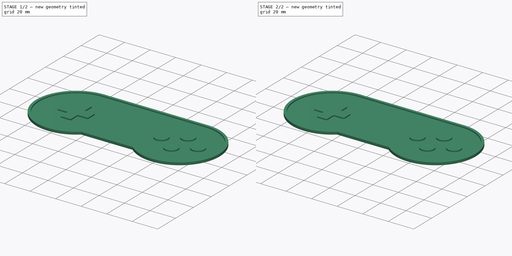
[diagram: build sequence overview — one tinted view per stage of 2, left to right]
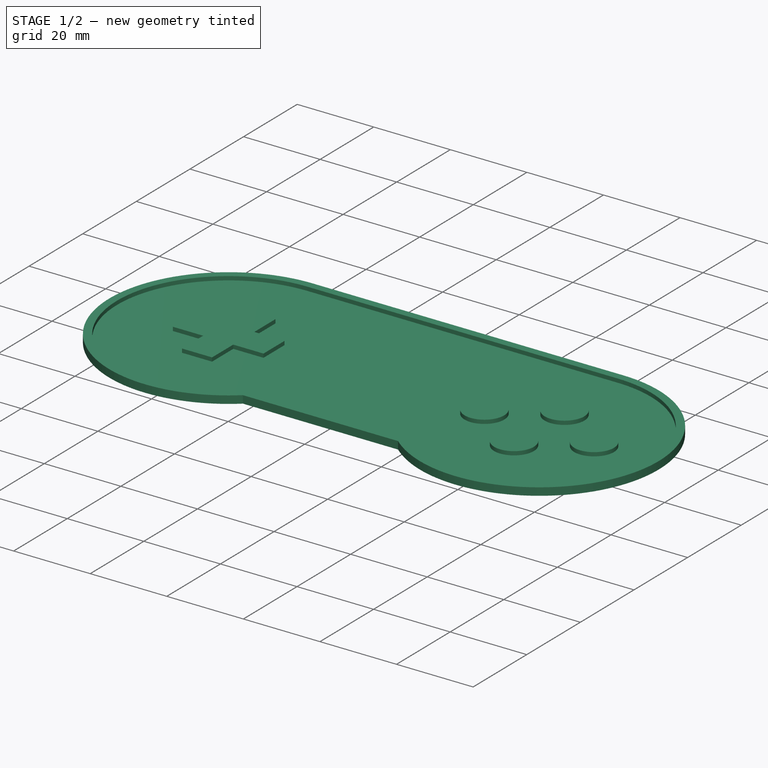
[diagram: stage 1 of 2 — iso view after this stage's code; geometry added in this stage tinted green]
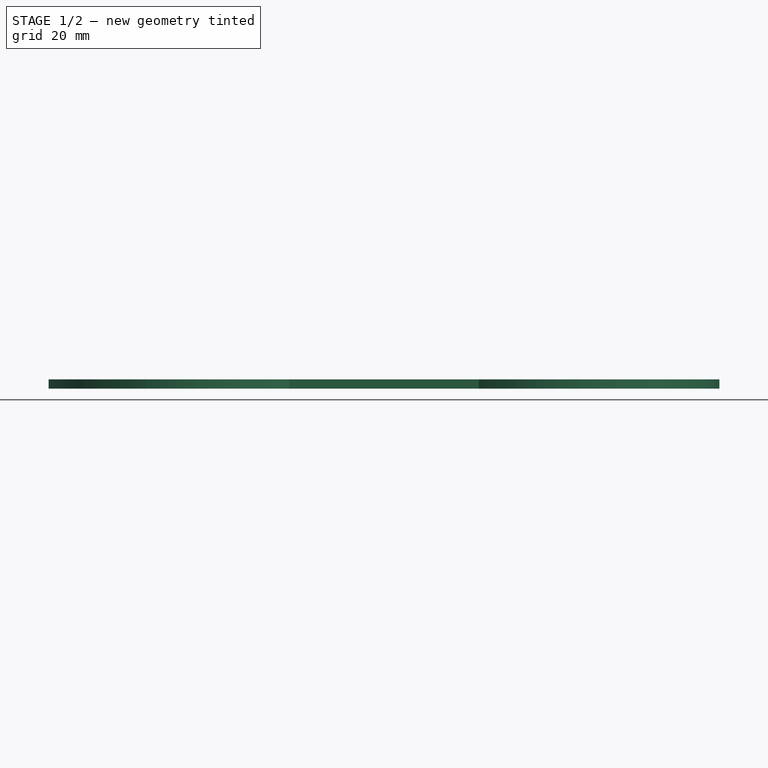
[diagram: stage 1 of 2 — front view after this stage's code; geometry added in this stage tinted green]
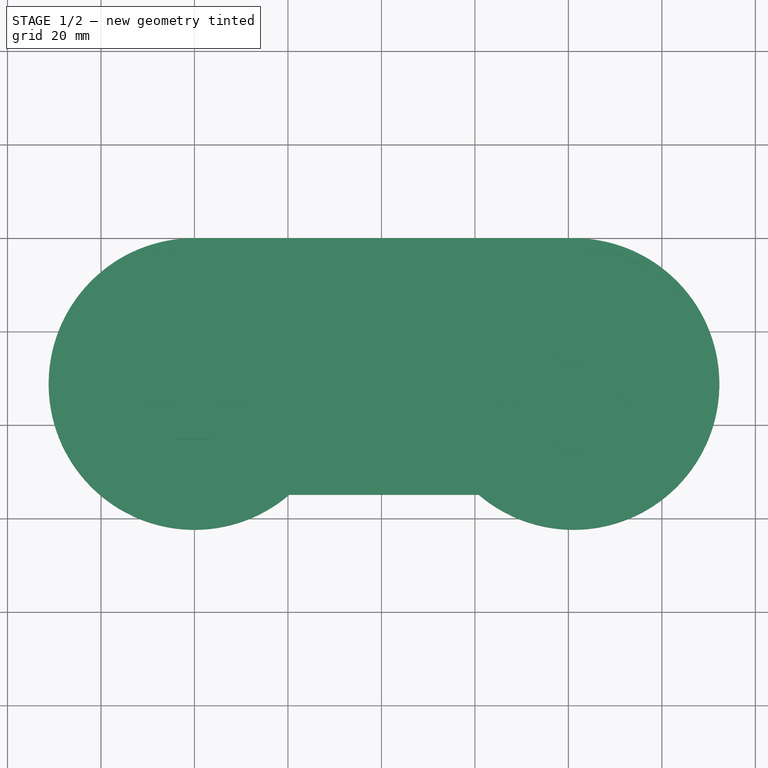
[diagram: stage 1 of 2 — top view after this stage's code; geometry added in this stage tinted green]
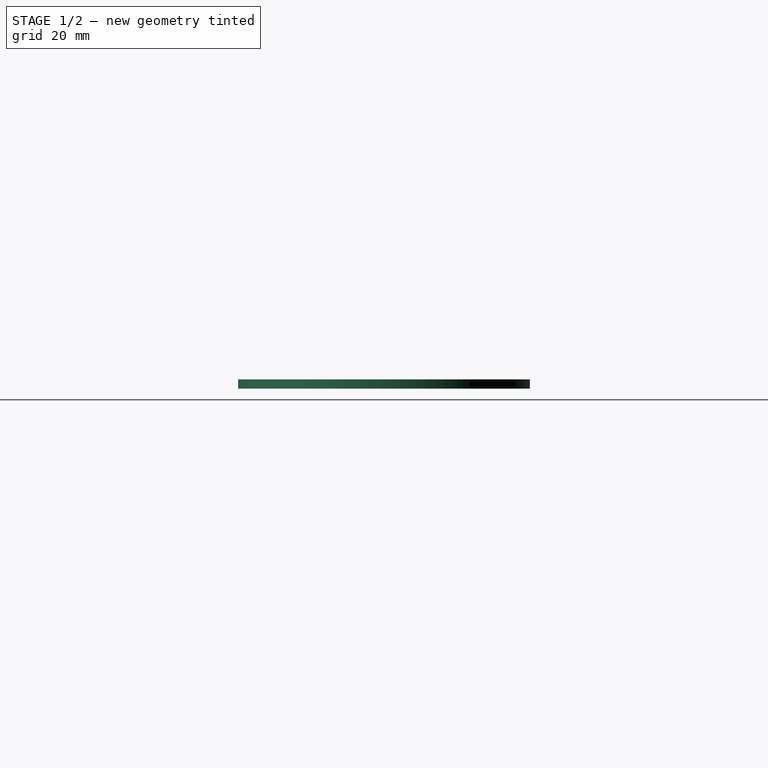
[diagram: stage 1 of 2 — right view after this stage's code; geometry added in this stage tinted green]
FCSTD DOCUMENT  (FreeCAD 0.20R29177 +426 (Git))
Label: SNES Icon
License: All rights reserved
LicenseURL: http://en.wikipedia.org/wiki/All_rights_reserved
objects: Sketcher::SketchObject×2, PartDesign::Pad×2, PartDesign::Fillet×1, PartDesign::Body×1
note: 9 computed .brp shape members not serialized (recipe doc carries the construction recipe); baked Part::Feature solids carry a one-line shape summary decoded from their .brp

FEATURE [Sketcher::SketchObject] Sketch
  FullyConstrained = true
  MapMode = 5
  Support = -> [XY_Plane]
  sketch-geometry (5):
    g0: LineSegment StartX=-1.2e-15 StartY=0 StartZ=0 EndX=81.1 EndY=0 EndZ=0
    g1: ArcOfCircle CenterX=3.8e-15 CenterY=-31.2 CenterZ=0 NormalX=0 NormalY=0 NormalZ=1 AngleXU=0 Radius=31.2 StartAngle=1.5708 EndAngle=5.42046
    g2: LineSegment StartX=20.2916 StartY=-54.9 StartZ=0 EndX=60.8084 EndY=-54.9 EndZ=0
    g3: LineSegment StartX=40.55 StartY=0 StartZ=0 EndX=40.55 EndY=-54.9 EndZ=0
    g4: ArcOfCircle CenterX=81.1 CenterY=-31.2 CenterZ=0 NormalX=0 NormalY=0 NormalZ=1 AngleXU=0 Radius=31.2 StartAngle=4.00431 EndAngle=7.85398
  constraints (14):
    c: Coincident(g0,g-1)
    c: PointOnObject(g0,g-1)
    c: DistanceX(g0,g0) = 81.1
    c: Tangent(g1,g0) = 1.5708
    c: Horizontal(g2)
    c: Vertical(g3)
    c: Distance(g3) = 54.9
    c: Symmetric(g0,g0,g3)
    c: Symmetric(g2,g2,g3)
    c: Radius(g1) = 31.2
    c: Coincident(g2,g1)
    c: Coincident(g4,g0)
    c: Coincident(g4,g2)
    c: Equal(g1,g4)
FEATURE [PartDesign::Pad] Pad
  Direction = (0,0,1)
  Length = 1
  Length2 = 10
  Profile = -> Sketch
  ReferenceAxis = -> Sketch [N_Axis]
  Type = 0
FEATURE [Sketcher::SketchObject] Sketch001
  ExternalGeometry = -> [Pad]
  FullyConstrained = true
  MapMode = 5
  Placement = pos=(0,0,1) rot=(0,0,1;0rad)
  Support = -> [Pad]
  sketch-geometry (34):
    g0: ArcOfCircle CenterX=4e-15 CenterY=-31.2 CenterZ=0 NormalX=0 NormalY=0 NormalZ=1 AngleXU=0 Radius=31.2 StartAngle=1.5708 EndAngle=5.42046
    g1: ArcOfCircle CenterX=81.1 CenterY=-31.2 CenterZ=0 NormalX=0 NormalY=0 NormalZ=1 AngleXU=0 Radius=31.2 StartAngle=4.00431 EndAngle=7.85398
    g2: LineSegment StartX=-1.1e-15 StartY=0 StartZ=0 EndX=81.1 EndY=3.6e-15 EndZ=0
    g3: LineSegment StartX=60.8084 StartY=-54.9 StartZ=0 EndX=20.2916 EndY=-54.9 EndZ=0
    g4: ArcOfCircle CenterX=4e-15 CenterY=-31.2 CenterZ=0 NormalX=0 NormalY=0 NormalZ=1 AngleXU=0 Radius=29.2 StartAngle=1.5708 EndAngle=5.44542
    g5: ArcOfCircle CenterX=81.1 CenterY=-31.2 CenterZ=0 NormalX=0 NormalY=0 NormalZ=1 AngleXU=0 Radius=29.2 StartAngle=3.97936 EndAngle=7.85398
    g6: LineSegment StartX=19.5384 StartY=-52.9 StartZ=0 EndX=61.5616 EndY=-52.9 EndZ=0
    g7: LineSegment StartX=81.1 StartY=-2 StartZ=0 EndX=0 EndY=-2 EndZ=0
    g8: LineSegment StartX=-1.1e-15 StartY=0 StartZ=0 EndX=-1.1e-15 EndY=-2 EndZ=0
    g9: LineSegment StartX=20.2916 StartY=-54.9 StartZ=0 EndX=20.2916 EndY=-52.9 EndZ=0
    g10: LineSegment StartX=-3.925 StartY=-19.375 StartZ=0 EndX=3.925 EndY=-19.375 EndZ=0
    g11: LineSegment StartX=3.925 StartY=-19.375 StartZ=0 EndX=3.925 EndY=-27.275 EndZ=0
    g12: LineSegment StartX=-3.925 StartY=-27.275 StartZ=0 EndX=-3.925 EndY=-19.375 EndZ=0
    g13: LineSegment StartX=3.925 StartY=-27.275 StartZ=0 EndX=11.825 EndY=-27.275 EndZ=0
    g14: LineSegment StartX=11.825 StartY=-27.275 StartZ=0 EndX=11.825 EndY=-35.125 EndZ=0
    g15: LineSegment StartX=11.825 StartY=-35.125 StartZ=0 EndX=3.925 EndY=-35.125 EndZ=0
    g16: LineSegment StartX=-3.925 StartY=-35.125 StartZ=0 EndX=-3.925 EndY=-43.025 EndZ=0
    g17: LineSegment StartX=-3.925 StartY=-43.025 StartZ=0 EndX=3.925 EndY=-43.025 EndZ=0
    g18: LineSegment StartX=3.925 StartY=-43.025 StartZ=0 EndX=3.925 EndY=-35.125 EndZ=0
    g19: LineSegment StartX=-3.925 StartY=-35.125 StartZ=0 EndX=-11.825 EndY=-35.125 EndZ=0
    g20: LineSegment StartX=-11.825 StartY=-35.125 StartZ=0 EndX=-11.825 EndY=-27.275 EndZ=0
    g21: LineSegment StartX=-11.825 StartY=-27.275 StartZ=0 EndX=-3.925 EndY=-27.275 EndZ=0
    g22: LineSegment StartX=4e-15 StartY=-19.375 StartZ=0 EndX=4e-15 EndY=-31.2 EndZ=0
    g23: LineSegment StartX=4e-15 StartY=-31.2 StartZ=0 EndX=3.9e-15 EndY=-43.025 EndZ=0
    g24: LineSegment StartX=-11.825 StartY=-31.2 StartZ=0 EndX=3.6e-15 EndY=-31.2 EndZ=0
    g25: LineSegment StartX=4e-15 StartY=-31.2 StartZ=0 EndX=11.825 EndY=-31.2 EndZ=0
    g26: LineSegment StartX=81.1 StartY=-31.2 StartZ=0 EndX=95.425 EndY=-31.2 EndZ=0
    g27: LineSegment StartX=81.1 StartY=-31.2 StartZ=0 EndX=81.1 EndY=-21.785 EndZ=0
    g28: LineSegment StartX=81.1 StartY=-31.2 StartZ=0 EndX=66.775 EndY=-31.2 EndZ=0
    g29: LineSegment StartX=81.1 StartY=-31.2 StartZ=0 EndX=81.1 EndY=-40.615 EndZ=0
    g30: Circle CenterX=81.1 CenterY=-21.785 CenterZ=0 NormalX=0 NormalY=0 NormalZ=1 AngleXU=0 Radius=5.175
    g31: Circle CenterX=95.425 CenterY=-31.2 CenterZ=0 NormalX=0 NormalY=0 NormalZ=1 AngleXU=0 Radius=5.175
    g32: Circle CenterX=81.1 CenterY=-40.615 CenterZ=0 NormalX=0 NormalY=0 NormalZ=1 AngleXU=0 Radius=5.175
    g33: Circle CenterX=66.775 CenterY=-31.2 CenterZ=0 NormalX=0 NormalY=0 NormalZ=1 AngleXU=0 Radius=5.175
  constraints (90):
    c: Coincident(g0,g-3)
    c: Coincident(g0,g-3)
    c: Coincident(g0,g-3)
    c: Coincident(g1,g-4)
    c: Coincident(g1,g-4)
    c: Coincident(g1,g-4)
    c: Coincident(g2,g0)
    c: Coincident(g2,g1)
    c: Coincident(g3,g1)
    c: Coincident(g3,g0)
    c: Coincident(g4,g0)
    c: Coincident(g5,g1)
    c: Coincident(g6,g4)
    c: Coincident(g6,g5)
    c: Horizontal(g6)
    c: Horizontal(g7)
    c: Tangent(g7,g4) = -1.5708
    c: Tangent(g7,g5) = -1.5708
    c: Coincident(g8,g0)
    c: Coincident(g8,g4)
    c: Vertical(g8)
    c: Coincident(g9,g0)
    c: PointOnObject(g9,g6)
    c: Vertical(g9)
    c: Equal(g8,g9)
    c: Distance(g8) = 2
    c: Coincident(g10,g11)
    c: Coincident(g12,g10)
    c: Horizontal(g10)
    c: Vertical(g11)
    c: Vertical(g12)
    c: Coincident(g13,g14)
    c: Coincident(g14,g15)
    c: Horizontal(g13)
    c: Horizontal(g15)
    c: Vertical(g14)
    c: Coincident(g13,g11)
    c: Coincident(g16,g17)
    c: Coincident(g17,g18)
    c: Horizontal(g17)
    c: Vertical(g16)
    c: Vertical(g18)
    c: Coincident(g19,g20)
    c: Coincident(g20,g21)
    c: Horizontal(g19)
    c: Horizontal(g21)
    c: Vertical(g20)
    c: Coincident(g19,g16)
    c: Coincident(g21,g12)
    c: Coincident(g15,g18)
    c: Coincident(g22,g0)
    c: Coincident(g23,g0)
    c: Symmetric(g10,g10,g22)
    c: Symmetric(g16,g17,g23)
    c: Vertical(g22)
    c: Equal(g22,g23)
    c: Coincident(g24,g0)
    c: Coincident(g25,g0)
    c: Symmetric(g13,g14,g25)
    c: Symmetric(g20,g19,g24)
    c: Distance(g10) = 7.85
    c: Equal(g10,g14)
    c: Equal(g17,g20)
    c: Equal(g20,g10)
    c: Equal(g12,g11)
    c: Equal(g21,g19)
    c: Distance(g11) = 7.9
    c: Equal(g13,g11)
    c: Equal(g15,g18)
    c: Equal(g19,g16)
    c: Coincident(g26,g1)
    c: Horizontal(g26)
    c: Coincident(g27,g1)
    c: Vertical(g27)
    c: Coincident(g28,g1)
    c: Horizontal(g28)
    c: Coincident(g29,g1)
    c: Vertical(g29)
    c: Equal(g26,g28)
    c: Equal(g27,g29)
    c: Distance(g26) = 14.325
    c: Distance(g27) = 9.415
    c: Coincident(g30,g27)
    c: Coincident(g31,g26)
    c: Coincident(g32,g29)
    c: Coincident(g33,g28)
    c: Diameter(g33) = 10.35
    c: Equal(g33,g30)
    c: Equal(g30,g31)
    c: Equal(g32,g31)
FEATURE [PartDesign::Pad] Pad001
  BaseFeature = -> Pad
  Direction = (0,0,1)
  Length = 1
  Length2 = 10
  Profile = -> Sketch001
  ReferenceAxis = -> Sketch001 [N_Axis]
  Type = 0
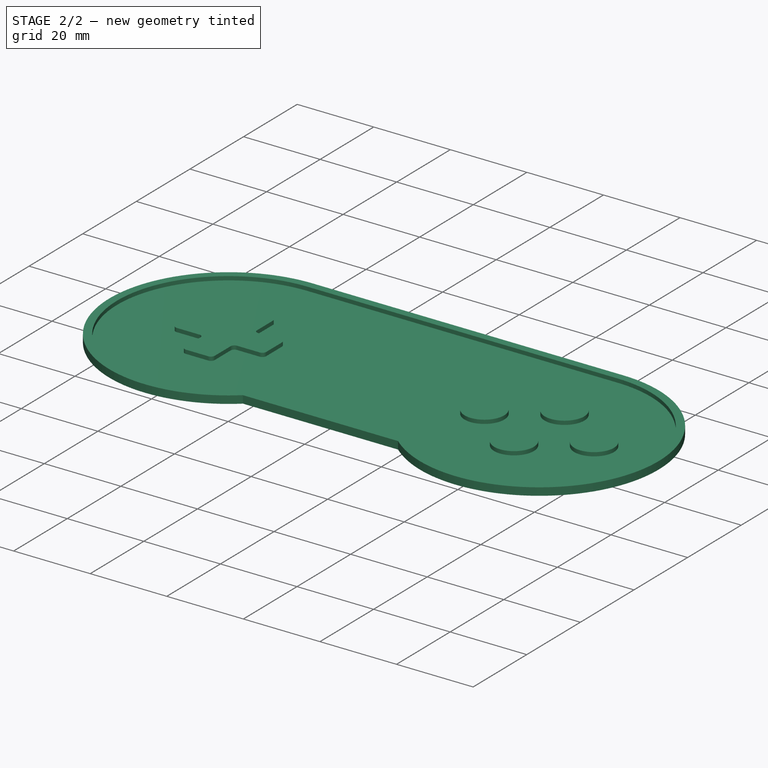
[diagram: stage 2 of 2 — iso view after this stage's code; geometry added in this stage tinted green]
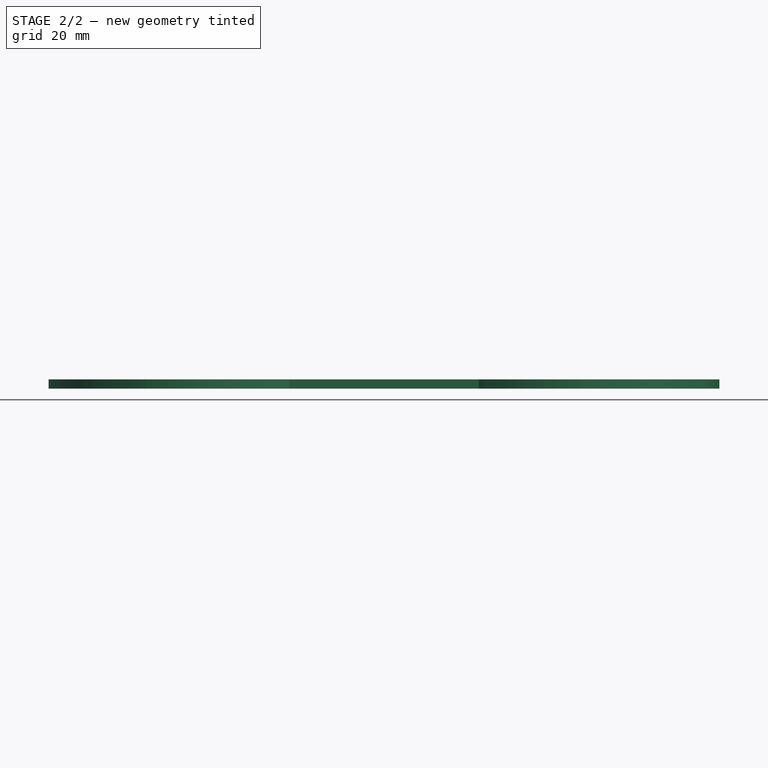
[diagram: stage 2 of 2 — front view after this stage's code; geometry added in this stage tinted green]
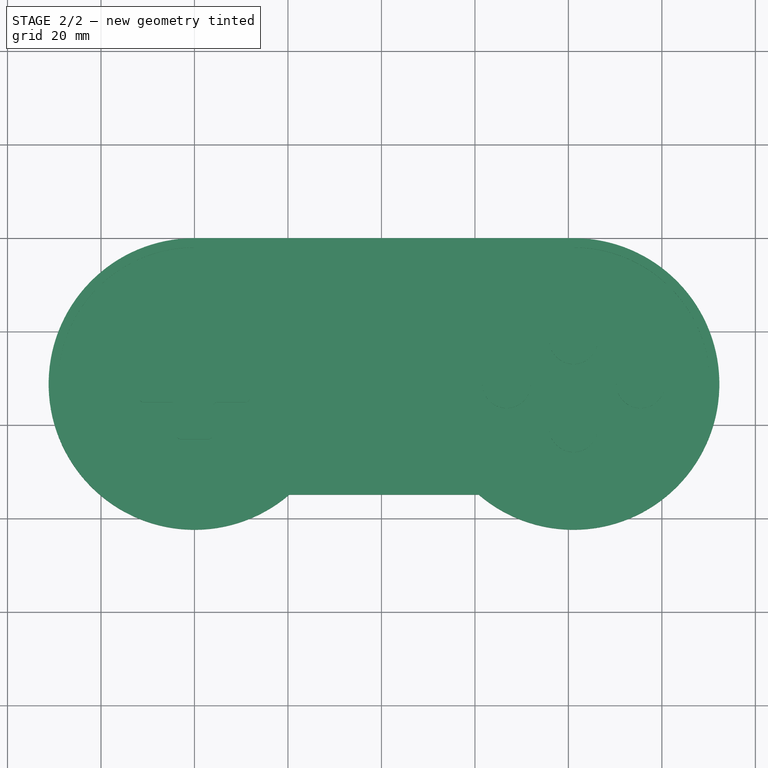
[diagram: stage 2 of 2 — top view after this stage's code; geometry added in this stage tinted green]
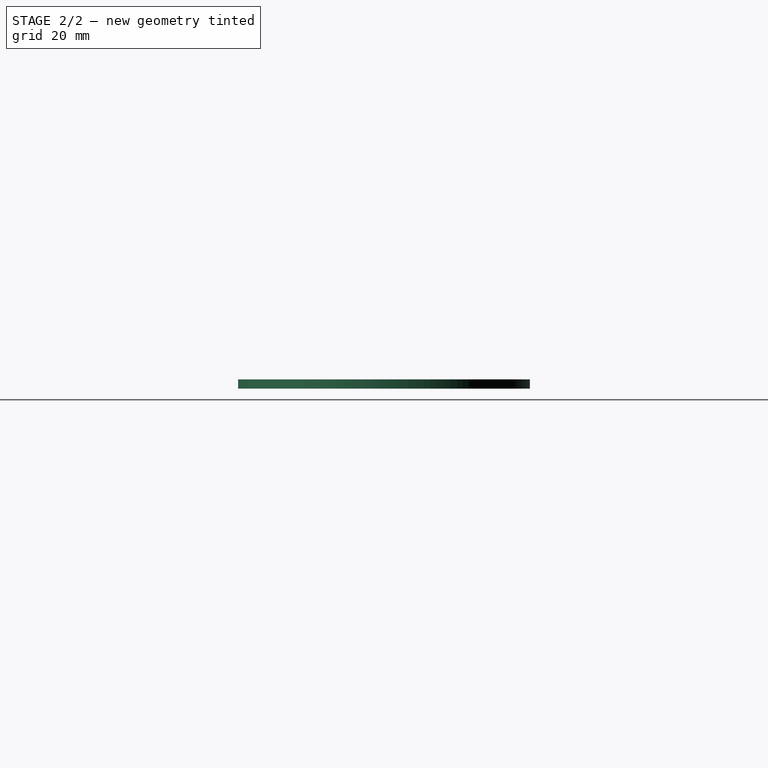
[diagram: stage 2 of 2 — right view after this stage's code; geometry added in this stage tinted green]
FEATURE [PartDesign::Fillet] Fillet
  Base = -> Pad001 [Edge56,Edge54,Edge58,Edge60,Edge64,Edge52,Edge51,Edge72,Edge70,Edge68,Edge66,Edge62]
  BaseFeature = -> Pad001
  Radius = 1
  SupportTransform = false
  UseAllEdges = false
FEATURE [PartDesign::Body] Body  label="SNES Icon"
  Group = -> [Sketch,Pad,Sketch001,Pad001,Fillet]
  Origin = -> Origin
  Tip = -> Fillet
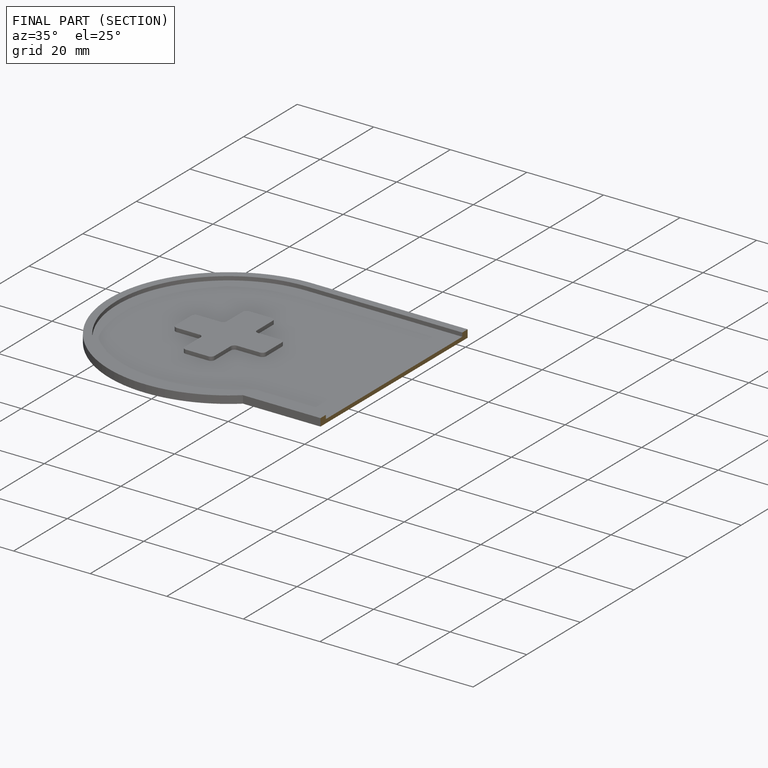
[diagram: finished part — half-section view (interior)]
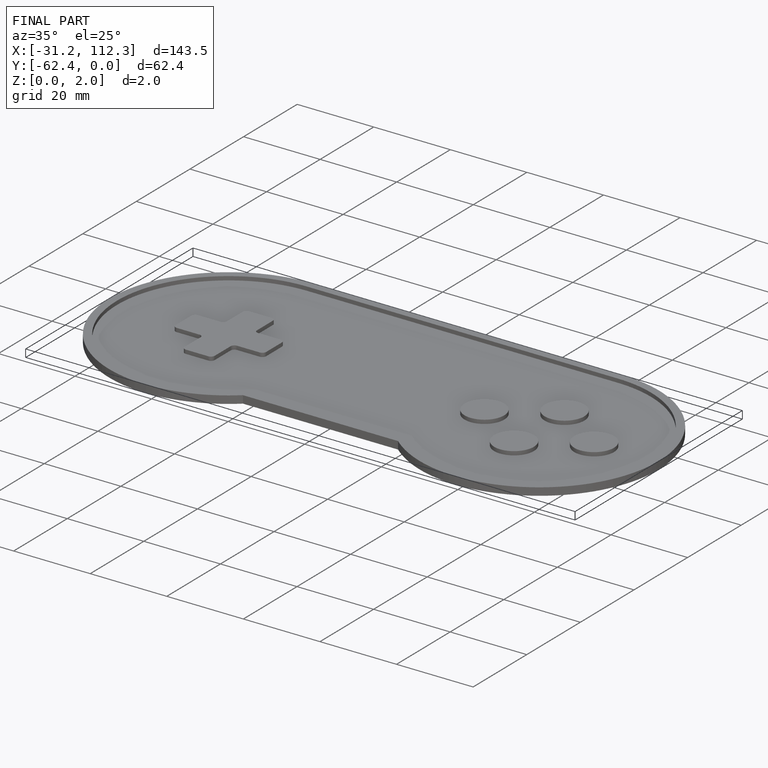
[diagram: finished part — iso view with bounding-box wireframe]
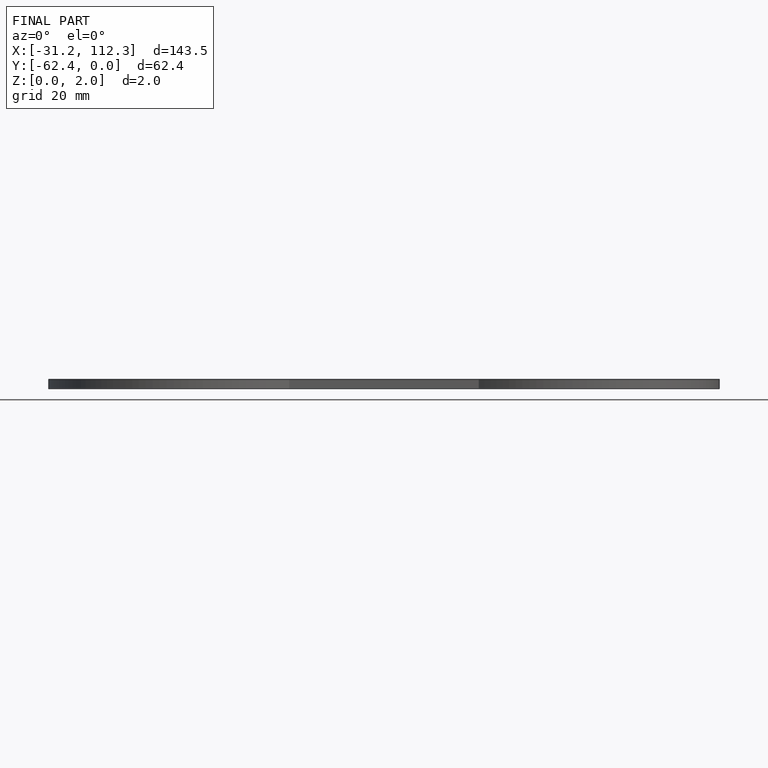
[diagram: finished part — front view with bounding-box wireframe]
